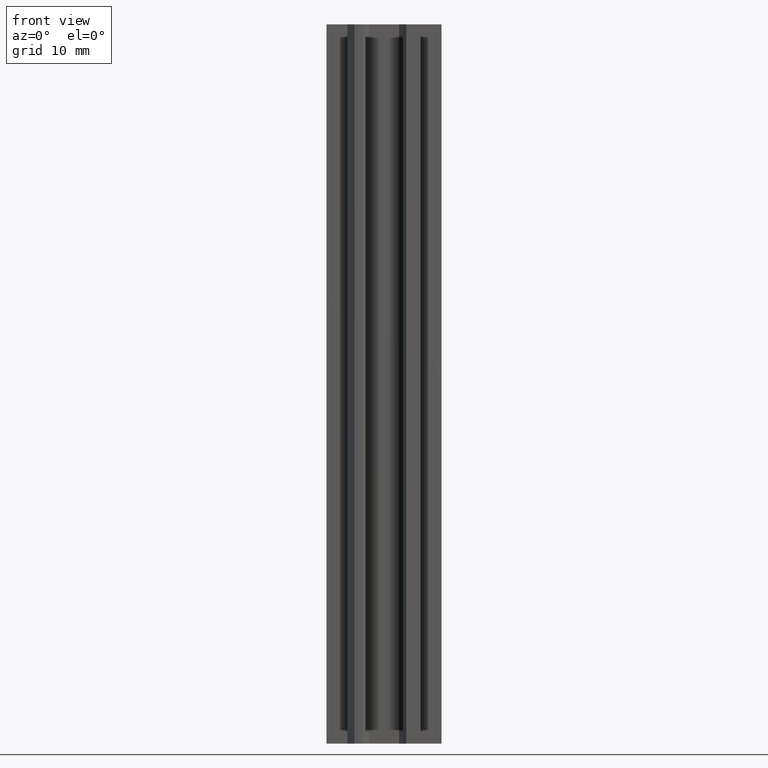
[diagram: clean part render]
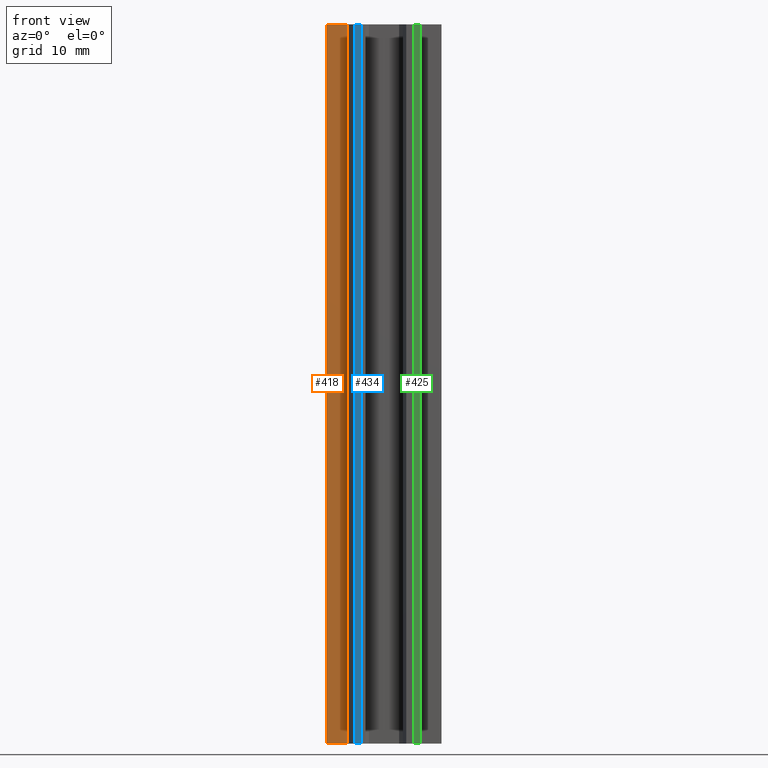
[diagram: same view with three faces highlighted in distinct colors, each labeled with its STEP entity id]
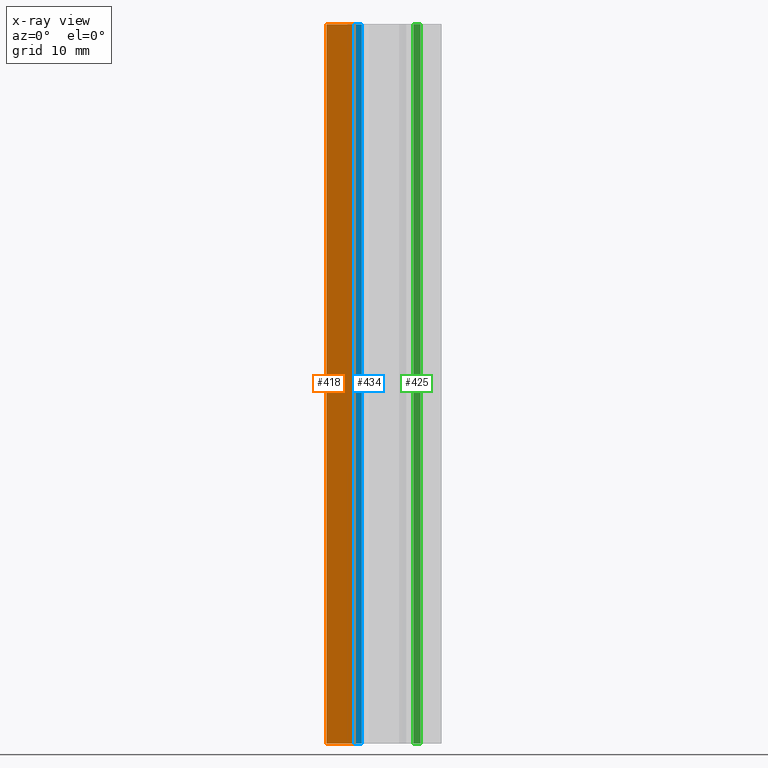
[diagram: x-ray of the same camera — body ghosted, the three highlighted faces saturated]
A machine part, front view with three faces highlighted in distinct colors.
The next image is the same camera in x-ray (body ghosted, the three faces saturated) — at least one of them is partly hidden behind the body in this view.
Their STEP definitions:

[orange] entity #418 — the highlighted planar face has unit normal (-0, -1, 0).
#27=FACE_OUTER_BOUND('',#49,.T.);
#49=EDGE_LOOP('',(#288,#289,#290,#291));
#77=LINE('',#618,#131);
#78=LINE('',#621,#132);
#79=LINE('',#623,#133);
#80=LINE('',#624,#134);
#131=VECTOR('',#502,10.);
#132=VECTOR('',#505,10.);
#133=VECTOR('',#506,10.);
#134=VECTOR('',#507,10.);
#182=VERTEX_POINT('',#614);
#183=VERTEX_POINT('',#616);
#184=VERTEX_POINT('',#620);
#185=VERTEX_POINT('',#622);
#225=EDGE_CURVE('',#182,#183,#77,.T.);
#226=EDGE_CURVE('',#184,#182,#78,.T.);
#227=EDGE_CURVE('',#185,#183,#79,.T.);
#228=EDGE_CURVE('',#184,#185,#80,.T.);
#288=ORIENTED_EDGE('',*,*,#226,.T.);
#289=ORIENTED_EDGE('',*,*,#225,.T.);
#290=ORIENTED_EDGE('',*,*,#227,.F.);
#291=ORIENTED_EDGE('',*,*,#228,.F.);
#399=PLANE('',#460);
#418=ADVANCED_FACE('',(#27),#399,.T.);
#460=AXIS2_PLACEMENT_3D('',#619,#503,#504);
#502=DIRECTION('',(0.,0.,1.));
#503=DIRECTION('center_axis',(-1.43332612400156E-15,-1.,0.));
#504=DIRECTION('ref_axis',(1.,-1.43332612400156E-15,0.));
#505=DIRECTION('',(1.,-1.43332612400156E-15,0.));
#506=DIRECTION('',(1.,-1.43332612400156E-15,0.));
#507=DIRECTION('',(0.,0.,1.));
#614=CARTESIAN_POINT('',(-4.1,-1.11022302462516E-15,0.));
#616=CARTESIAN_POINT('',(-4.1,-1.11022302462516E-15,100.));
#618=CARTESIAN_POINT('',(-4.1,-1.11022302462516E-15,0.));
#619=CARTESIAN_POINT('Origin',(-8.00000000000001,4.47974885898094E-15,0.));
#620=CARTESIAN_POINT('',(-8.00000000000001,4.47974885898094E-15,0.));
#621=CARTESIAN_POINT('',(-8.00000000000001,4.47974885898094E-15,0.));
#622=CARTESIAN_POINT('',(-8.00000000000001,4.44089209850063E-15,100.));
#623=CARTESIAN_POINT('',(-8.00000000000001,4.47974885898094E-15,100.));
#624=CARTESIAN_POINT('',(-8.00000000000001,4.47974885898094E-15,0.));

[blue] entity #434 — the highlighted planar face has unit normal (0, -1, 0).
#43=FACE_OUTER_BOUND('',#65,.T.);
#65=EDGE_LOOP('',(#352,#353,#354,#355));
#69=LINE('',#603,#123);
#119=LINE('',#714,#173);
#120=LINE('',#716,#174);
#121=LINE('',#717,#175);
#123=VECTOR('',#490,10.);
#173=VECTOR('',#588,10.);
#174=VECTOR('',#591,10.);
#175=VECTOR('',#592,10.);
#177=VERTEX_POINT('',#600);
#178=VERTEX_POINT('',#602);
#214=VERTEX_POINT('',#710);
#215=VERTEX_POINT('',#712);
#217=EDGE_CURVE('',#177,#178,#69,.T.);
#273=EDGE_CURVE('',#214,#215,#119,.T.);
#274=EDGE_CURVE('',#177,#214,#120,.T.);
#275=EDGE_CURVE('',#178,#215,#121,.T.);
#352=ORIENTED_EDGE('',*,*,#274,.T.);
#353=ORIENTED_EDGE('',*,*,#273,.T.);
#354=ORIENTED_EDGE('',*,*,#275,.F.);
#355=ORIENTED_EDGE('',*,*,#217,.F.);
#412=PLANE('',#482);
#434=ADVANCED_FACE('',(#43),#412,.T.);
#482=AXIS2_PLACEMENT_3D('',#715,#589,#590);
#490=DIRECTION('',(0.,0.,1.));
#588=DIRECTION('',(0.,0.,1.));
#589=DIRECTION('center_axis',(0.,-1.,0.));
#590=DIRECTION('ref_axis',(1.,0.,0.));
#591=DIRECTION('',(1.,0.,0.));
#592=DIRECTION('',(1.,0.,0.));
#600=CARTESIAN_POINT('',(-4.1,-7.7,0.));
#602=CARTESIAN_POINT('',(-4.1,-7.7,100.));
#603=CARTESIAN_POINT('',(-4.1,-7.7,0.));
#710=CARTESIAN_POINT('',(-3.1,-7.7,0.));
#712=CARTESIAN_POINT('',(-3.1,-7.7,100.));
#714=CARTESIAN_POINT('',(-3.1,-7.7,0.));
#715=CARTESIAN_POINT('Origin',(-4.1,-7.7,0.));
#716=CARTESIAN_POINT('',(-4.1,-7.7,0.));
#717=CARTESIAN_POINT('',(-4.1,-7.7,100.));

[green] entity #425 — the highlighted planar face has unit normal (0.9545, -0.2983, 0).
#34=FACE_OUTER_BOUND('',#56,.T.);
#56=EDGE_LOOP('',(#316,#317,#318,#319));
#92=LINE('',#660,#146);
#93=LINE('',#663,#147);
#94=LINE('',#665,#148);
#95=LINE('',#666,#149);
#146=VECTOR('',#543,10.);
#147=VECTOR('',#546,10.);
#148=VECTOR('',#547,10.);
#149=VECTOR('',#548,10.);
#196=VERTEX_POINT('',#656);
#197=VERTEX_POINT('',#658);
#198=VERTEX_POINT('',#662);
#199=VERTEX_POINT('',#664);
#246=EDGE_CURVE('',#196,#197,#92,.T.);
#247=EDGE_CURVE('',#198,#196,#93,.T.);
#248=EDGE_CURVE('',#199,#197,#94,.T.);
#249=EDGE_CURVE('',#198,#199,#95,.T.);
#316=ORIENTED_EDGE('',*,*,#247,.T.);
#317=ORIENTED_EDGE('',*,*,#246,.T.);
#318=ORIENTED_EDGE('',*,*,#248,.F.);
#319=ORIENTED_EDGE('',*,*,#249,.F.);
#403=PLANE('',#473);
#425=ADVANCED_FACE('',(#34),#403,.T.);
#473=AXIS2_PLACEMENT_3D('',#661,#544,#545);
#543=DIRECTION('',(0.,0.,1.));
#544=DIRECTION('center_axis',(0.95447997803503,-0.298274993135946,0.));
#545=DIRECTION('ref_axis',(0.298274993135946,0.95447997803503,0.));
#546=DIRECTION('',(0.298274993135946,0.95447997803503,0.));
#547=DIRECTION('',(0.298274993135946,0.95447997803503,0.));
#548=DIRECTION('',(0.,0.,1.));
#656=CARTESIAN_POINT('',(5.1,-4.5,0.));
#658=CARTESIAN_POINT('',(5.1,-4.5,100.));
#660=CARTESIAN_POINT('',(5.1,-4.5,0.));
#661=CARTESIAN_POINT('Origin',(4.1,-7.7,0.));
#662=CARTESIAN_POINT('',(4.1,-7.7,0.));
#663=CARTESIAN_POINT('',(4.1,-7.7,0.));
#664=CARTESIAN_POINT('',(4.1,-7.7,100.));
#665=CARTESIAN_POINT('',(4.1,-7.7,100.));
#666=CARTESIAN_POINT('',(4.1,-7.7,0.));